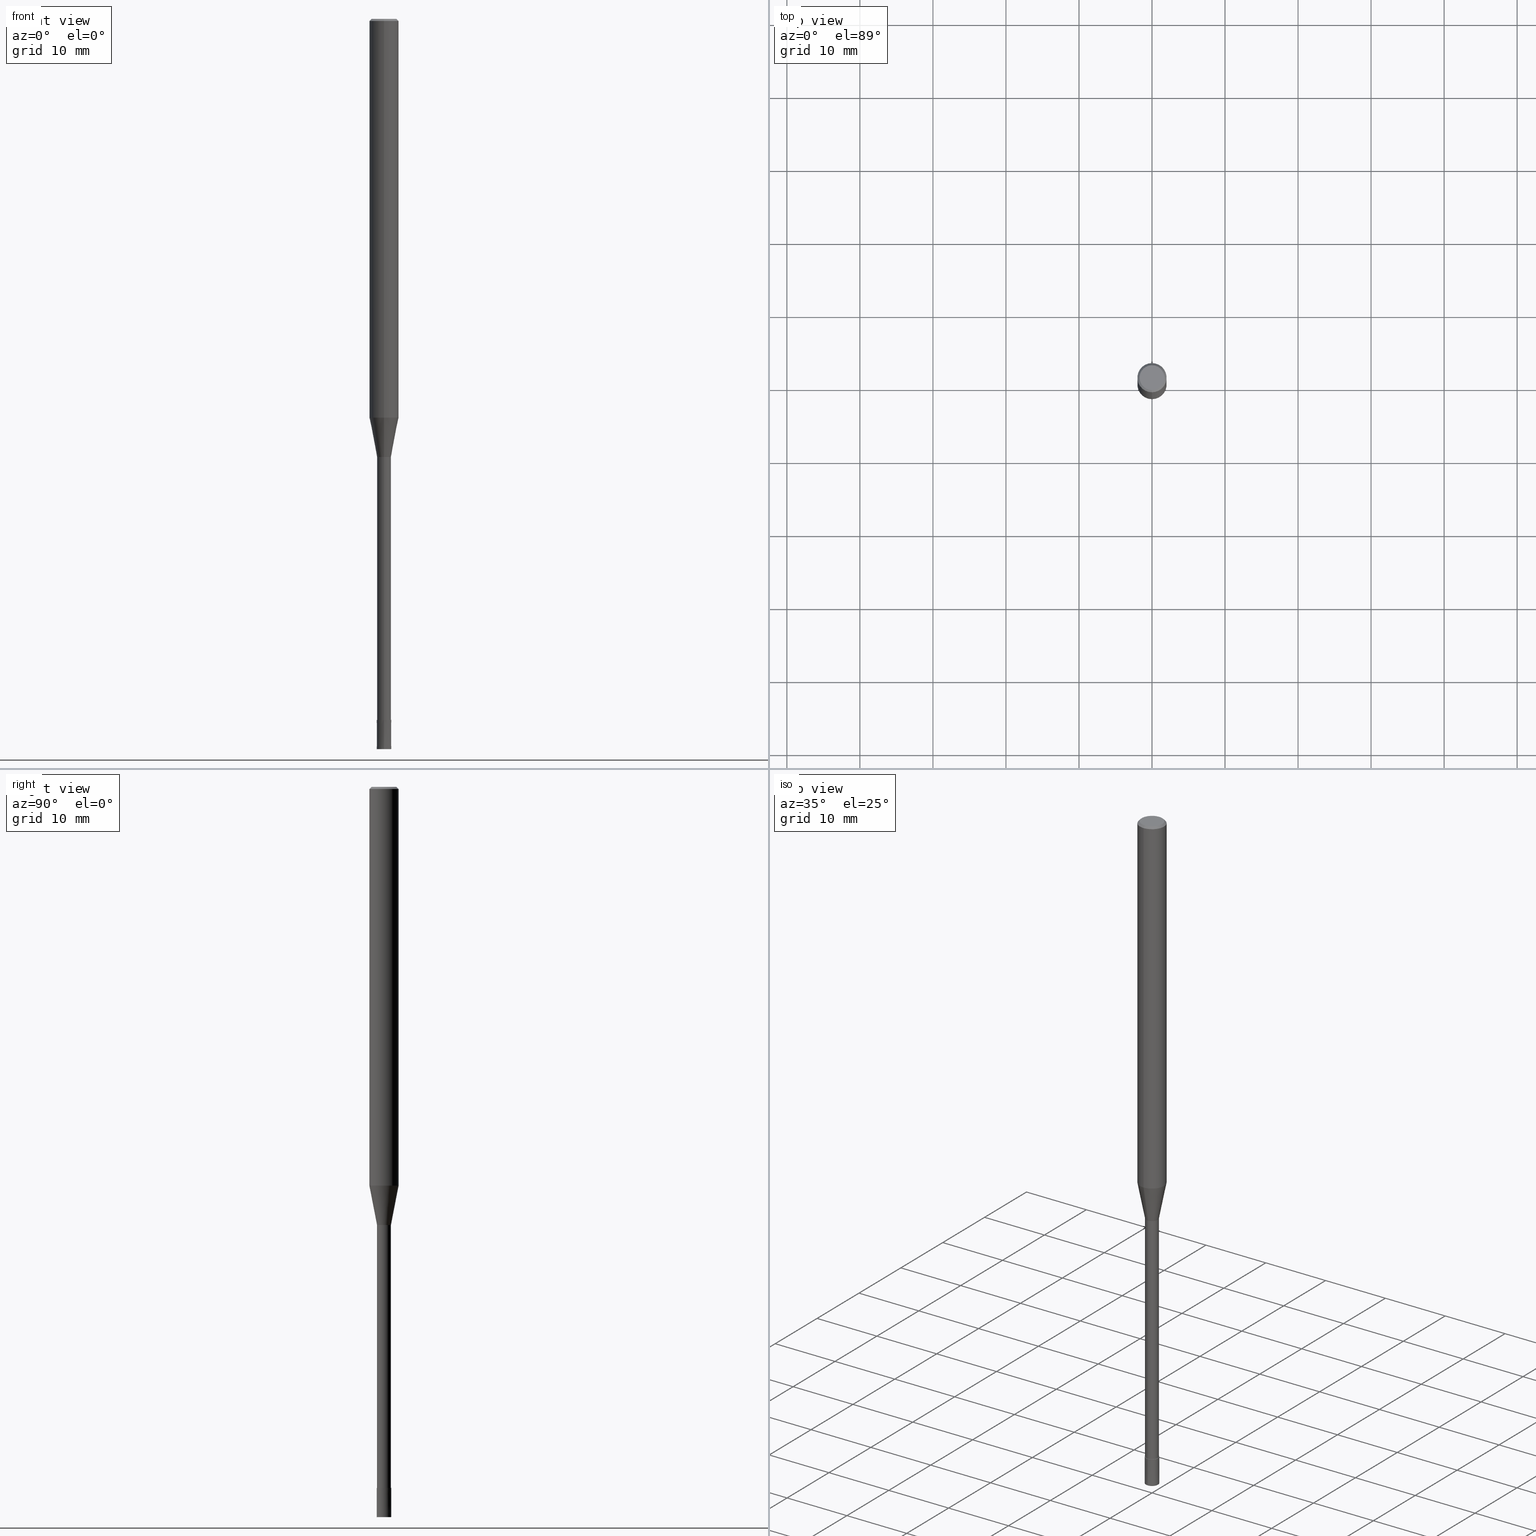
[diagram: canonical four-view strip — front | top / right | iso, engineering-drawing reading convention]
A machine part, canonical four-view strip (front | top / right | iso — engineering-drawing reading convention). The complete STEP part file that produces these views, byte-faithful:
ISO-10303-21;
HEADER;
FILE_DESCRIPTION(('no description'),'unknown implementation level');
FILE_NAME('CPRL2020-40-Huellk.stp','  ',('CIMSOURCE GmbH'),('CADClick - KiM GmbH - www.kimweb.de'),'unknown preprocess','ACIS','unknown authorization');
FILE_SCHEMA(('automotive_design'));
ENDSEC;
DATA;
#1=MECHANICAL_DESIGN_GEOMETRIC_PRESENTATION_REPRESENTATION(' ',(#14,#15,#16,#17,#18,#19,#20,#21,#22,#23,#24,#25,#26,#27,#28,#29,#30,#31,#32,#33,#34,#35,#36,#37,#38,#39,#40,#41,#42,#43,#44,#45,#46,#47,#48,#49,#50,#51,#52,#53,#54,#55,#56,#57,#58,#59,#60,#61,#62,#63,#64,#65,#66,#67,#68,#69,#70,#71,#72),#10);
#2=PRODUCT_DEFINITION_CONTEXT('',#73,'design');
#3=APPLICATION_PROTOCOL_DEFINITION('INTERNATIONAL STANDARD','automotive_design',1994,#73);
#4=PRODUCT_CATEGORY_RELATIONSHIP('NONE','NONE',#74,#75);
#5=SHAPE_DEFINITION_REPRESENTATION(#76,#77);
#6=PRODUCT_DEFINITION_CONTEXT('',#78,'design');
#7=APPLICATION_PROTOCOL_DEFINITION('INTERNATIONAL STANDARD','automotive_design',1994,#78);
#8=PRODUCT_CATEGORY_RELATIONSHIP('NONE','NONE',#79,#80);
#9=SHAPE_DEFINITION_REPRESENTATION(#81,#82);
#10= (GEOMETRIC_REPRESENTATION_CONTEXT(3)GLOBAL_UNCERTAINTY_ASSIGNED_CONTEXT((#85))GLOBAL_UNIT_ASSIGNED_CONTEXT((#87,#88,#89))REPRESENTATION_CONTEXT('NONE','WORKSPACE'));
#14=STYLED_ITEM('',(#91),#92);
#15=STYLED_ITEM('',(#93),#94);
#16=STYLED_ITEM('',(#95),#96);
#17=STYLED_ITEM('',(#97),#98);
#18=STYLED_ITEM('',(#99),#100);
#19=STYLED_ITEM('',(#101),#102);
#20=STYLED_ITEM('',(#103),#104);
#21=STYLED_ITEM('',(#105),#106);
#22=STYLED_ITEM('',(#107),#108);
#23=STYLED_ITEM('',(#109),#110);
#24=STYLED_ITEM('',(#111),#112);
#25=STYLED_ITEM('',(#113),#114);
#26=STYLED_ITEM('',(#115),#116);
#27=STYLED_ITEM('',(#117),#118);
#28=STYLED_ITEM('',(#119),#120);
#29=STYLED_ITEM('',(#121),#122);
#30=STYLED_ITEM('',(#123),#124);
#31=STYLED_ITEM('',(#125),#126);
#32=STYLED_ITEM('',(#127),#128);
#33=STYLED_ITEM('',(#129),#130);
#34=STYLED_ITEM('',(#131),#132);
#35=STYLED_ITEM('',(#133),#134);
#36=STYLED_ITEM('',(#135),#136);
#37=STYLED_ITEM('',(#137),#138);
#38=STYLED_ITEM('',(#139),#140);
#39=STYLED_ITEM('',(#141),#142);
#40=STYLED_ITEM('',(#143),#144);
#41=STYLED_ITEM('',(#145),#146);
#42=STYLED_ITEM('',(#147),#148);
#43=STYLED_ITEM('',(#149),#150);
#44=STYLED_ITEM('',(#151),#152);
#45=STYLED_ITEM('',(#153),#154);
#46=STYLED_ITEM('',(#155),#156);
#47=STYLED_ITEM('',(#157),#158);
#48=STYLED_ITEM('',(#159),#160);
#49=STYLED_ITEM('',(#161),#162);
#50=STYLED_ITEM('',(#163),#164);
#51=STYLED_ITEM('',(#165),#166);
#52=STYLED_ITEM('',(#167),#168);
#53=STYLED_ITEM('',(#169),#170);
#54=STYLED_ITEM('',(#171),#172);
#55=STYLED_ITEM('',(#173),#174);
#56=STYLED_ITEM('',(#175),#176);
#57=STYLED_ITEM('',(#177),#178);
#58=STYLED_ITEM('',(#179),#180);
#59=STYLED_ITEM('',(#181),#182);
#60=STYLED_ITEM('',(#183),#184);
#61=STYLED_ITEM('',(#185),#186);
#62=STYLED_ITEM('',(#187),#188);
#63=STYLED_ITEM('',(#189),#190);
#64=STYLED_ITEM('',(#191),#192);
#65=STYLED_ITEM('',(#193),#194);
#66=STYLED_ITEM('',(#195),#196);
#67=STYLED_ITEM('',(#197),#198);
#68=STYLED_ITEM('',(#199),#200);
#69=STYLED_ITEM('',(#201),#202);
#70=STYLED_ITEM('',(#203),#204);
#71=STYLED_ITEM('',(#205),#206);
#72=STYLED_ITEM('',(#207),#208);
#73=APPLICATION_CONTEXT(' ');
#74=PRODUCT_CATEGORY('part','NONE');
#75=PRODUCT_RELATED_PRODUCT_CATEGORY('detail',' ',(#209));
#76=PRODUCT_DEFINITION_SHAPE('NONE','NONE',#210);
#77=ADVANCED_BREP_SHAPE_REPRESENTATION('1',(#182,#211),#10);
#78=APPLICATION_CONTEXT(' ');
#79=PRODUCT_CATEGORY('part','NONE');
#80=PRODUCT_RELATED_PRODUCT_CATEGORY('detail',' ',(#212));
#81=PRODUCT_DEFINITION_SHAPE('NONE','NONE',#213);
#82=ADVANCED_BREP_SHAPE_REPRESENTATION('2',(#134,#214),#10);
#85=UNCERTAINTY_MEASURE_WITH_UNIT(LENGTH_MEASURE(1.0E-006),#87,'','');
#87= (CONVERSION_BASED_UNIT('MILLIMETRE',#217)LENGTH_UNIT()NAMED_UNIT(#220));
#88= (NAMED_UNIT(#222)PLANE_ANGLE_UNIT()SI_UNIT($,.RADIAN.));
#89= (NAMED_UNIT(#222)SOLID_ANGLE_UNIT()SI_UNIT($,.STERADIAN.));
#91=PRESENTATION_STYLE_ASSIGNMENT((#228));
#92=EDGE_CURVE('',#98,#154,#229,.T.);
#93=PRESENTATION_STYLE_ASSIGNMENT((#230));
#94=EDGE_CURVE('',#196,#110,#231,.T.);
#95=PRESENTATION_STYLE_ASSIGNMENT((#232));
#96=ADVANCED_FACE('',(#233),#234,.T.);
#97=PRESENTATION_STYLE_ASSIGNMENT((#235));
#98=VERTEX_POINT('',#236);
#99=PRESENTATION_STYLE_ASSIGNMENT((#237));
#100=EDGE_CURVE('',#180,#138,#238,.T.);
#101=PRESENTATION_STYLE_ASSIGNMENT((#239));
#102=VERTEX_POINT('',#240);
#103=PRESENTATION_STYLE_ASSIGNMENT((#241));
#104=EDGE_CURVE('',#150,#162,#242,.T.);
#105=PRESENTATION_STYLE_ASSIGNMENT((#243));
#106=EDGE_CURVE('',#176,#160,#244,.T.);
#107=PRESENTATION_STYLE_ASSIGNMENT((#245));
#108=ADVANCED_FACE('',(#246),#247,.T.);
#109=PRESENTATION_STYLE_ASSIGNMENT((#248));
#110=VERTEX_POINT('',#249);
#111=PRESENTATION_STYLE_ASSIGNMENT((#250));
#112=EDGE_CURVE('',#110,#186,#251,.T.);
#113=PRESENTATION_STYLE_ASSIGNMENT((#252));
#114=ADVANCED_FACE('',(#253),#254,.T.);
#115=PRESENTATION_STYLE_ASSIGNMENT((#255));
#116=ADVANCED_FACE('',(#256),#257,.T.);
#117=PRESENTATION_STYLE_ASSIGNMENT((#258));
#118=EDGE_CURVE('',#190,#162,#259,.T.);
#119=PRESENTATION_STYLE_ASSIGNMENT((#260));
#120=EDGE_CURVE('',#138,#176,#261,.T.);
#121=PRESENTATION_STYLE_ASSIGNMENT((#262));
#122=ADVANCED_FACE('',(#263),#264,.T.);
#123=PRESENTATION_STYLE_ASSIGNMENT((#265));
#124=EDGE_CURVE('',#196,#98,#266,.T.);
#125=PRESENTATION_STYLE_ASSIGNMENT((#267));
#126=EDGE_CURVE('',#186,#110,#268,.T.);
#127=PRESENTATION_STYLE_ASSIGNMENT((#269));
#128=EDGE_CURVE('',#136,#138,#270,.T.);
#129=PRESENTATION_STYLE_ASSIGNMENT((#271));
#130=ADVANCED_FACE('',(#272),#273,.T.);
#131=PRESENTATION_STYLE_ASSIGNMENT((#274));
#132=ADVANCED_FACE('',(#275),#276,.T.);
#133=PRESENTATION_STYLE_ASSIGNMENT((#277));
#134=MANIFOLD_SOLID_BREP('2',#278);
#135=PRESENTATION_STYLE_ASSIGNMENT((#279));
#136=VERTEX_POINT('',#280);
#137=PRESENTATION_STYLE_ASSIGNMENT((#281));
#138=VERTEX_POINT('',#282);
#139=PRESENTATION_STYLE_ASSIGNMENT((#283));
#140=EDGE_CURVE('',#186,#98,#284,.T.);
#141=PRESENTATION_STYLE_ASSIGNMENT((#285));
#142=EDGE_CURVE('',#160,#176,#286,.T.);
#143=PRESENTATION_STYLE_ASSIGNMENT((#287));
#144=ADVANCED_FACE('',(#288),#289,.T.);
#145=PRESENTATION_STYLE_ASSIGNMENT((#290));
#146=ADVANCED_FACE('',(#291),#292,.T.);
#147=PRESENTATION_STYLE_ASSIGNMENT((#293));
#148=ADVANCED_FACE('',(#294),#295,.T.);
#149=PRESENTATION_STYLE_ASSIGNMENT((#296));
#150=VERTEX_POINT('',#297);
#151=PRESENTATION_STYLE_ASSIGNMENT((#298));
#152=EDGE_CURVE('',#138,#136,#299,.T.);
#153=PRESENTATION_STYLE_ASSIGNMENT((#300));
#154=VERTEX_POINT('',#301);
#155=PRESENTATION_STYLE_ASSIGNMENT((#302));
#156=ADVANCED_FACE('',(#303),#304,.T.);
#157=PRESENTATION_STYLE_ASSIGNMENT((#305));
#158=ADVANCED_FACE('',(#306),#307,.T.);
#159=PRESENTATION_STYLE_ASSIGNMENT((#308));
#160=VERTEX_POINT('',#309);
#161=PRESENTATION_STYLE_ASSIGNMENT((#310));
#162=VERTEX_POINT('',#311);
#163=PRESENTATION_STYLE_ASSIGNMENT((#312));
#164=VERTEX_POINT('',#313);
#165=PRESENTATION_STYLE_ASSIGNMENT((#314));
#166=EDGE_CURVE('',#180,#102,#315,.T.);
#167=PRESENTATION_STYLE_ASSIGNMENT((#316));
#168=EDGE_CURVE('',#98,#196,#317,.T.);
#169=PRESENTATION_STYLE_ASSIGNMENT((#318));
#170=EDGE_CURVE('',#162,#190,#319,.T.);
#171=PRESENTATION_STYLE_ASSIGNMENT((#320));
#172=EDGE_CURVE('',#190,#184,#321,.T.);
#173=PRESENTATION_STYLE_ASSIGNMENT((#322));
#174=ADVANCED_FACE('',(#323),#324,.T.);
#175=PRESENTATION_STYLE_ASSIGNMENT((#325));
#176=VERTEX_POINT('',#326);
#177=PRESENTATION_STYLE_ASSIGNMENT((#327));
#178=EDGE_CURVE('',#150,#184,#328,.T.);
#179=PRESENTATION_STYLE_ASSIGNMENT((#329));
#180=VERTEX_POINT('',#330);
#181=PRESENTATION_STYLE_ASSIGNMENT((#331));
#182=MANIFOLD_SOLID_BREP('1',#332);
#183=PRESENTATION_STYLE_ASSIGNMENT((#333));
#184=VERTEX_POINT('',#334);
#185=PRESENTATION_STYLE_ASSIGNMENT((#335));
#186=VERTEX_POINT('',#336);
#187=PRESENTATION_STYLE_ASSIGNMENT((#337));
#188=EDGE_CURVE('',#184,#150,#338,.T.);
#189=PRESENTATION_STYLE_ASSIGNMENT((#339));
#190=VERTEX_POINT('',#340);
#191=PRESENTATION_STYLE_ASSIGNMENT((#341));
#192=EDGE_CURVE('',#154,#164,#342,.T.);
#193=PRESENTATION_STYLE_ASSIGNMENT((#343));
#194=ADVANCED_FACE('',(#344,#345),#346,.T.);
#195=PRESENTATION_STYLE_ASSIGNMENT((#347));
#196=VERTEX_POINT('',#348);
#197=PRESENTATION_STYLE_ASSIGNMENT((#349));
#198=EDGE_CURVE('',#160,#136,#350,.T.);
#199=PRESENTATION_STYLE_ASSIGNMENT((#351));
#200=EDGE_CURVE('',#102,#180,#352,.T.);
#201=PRESENTATION_STYLE_ASSIGNMENT((#353));
#202=ADVANCED_FACE('',(#354),#355,.T.);
#203=PRESENTATION_STYLE_ASSIGNMENT((#356));
#204=EDGE_CURVE('',#136,#102,#357,.T.);
#205=PRESENTATION_STYLE_ASSIGNMENT((#358));
#206=EDGE_CURVE('',#164,#196,#359,.T.);
#207=PRESENTATION_STYLE_ASSIGNMENT((#360));
#208=EDGE_CURVE('',#164,#154,#361,.T.);
#209=PRODUCT('1','1','PART-1-DESC',(#362));
#210=PRODUCT_DEFINITION('NONE','NONE',#363,#2);
#211=AXIS2_PLACEMENT_3D('',#364,#365,#366);
#212=PRODUCT('2','2','PART-2-DESC',(#367));
#213=PRODUCT_DEFINITION('NONE','NONE',#368,#6);
#214=AXIS2_PLACEMENT_3D('',#369,#370,#371);
#217=LENGTH_MEASURE_WITH_UNIT(LENGTH_MEASURE(1.0),#372);
#220=DIMENSIONAL_EXPONENTS(1.0,0.0,0.0,0.0,0.0,0.0,0.0);
#222=DIMENSIONAL_EXPONENTS(0.0,0.0,0.0,0.0,0.0,0.0,0.0);
#228=CURVE_STYLE('',#373,POSITIVE_LENGTH_MEASURE(1.0E-006),#374);
#229=LINE('',#375,#376);
#230=CURVE_STYLE('',#377,POSITIVE_LENGTH_MEASURE(1.0E-006),#378);
#231=LINE('',#379,#380);
#232=SURFACE_STYLE_USAGE(.BOTH.,#381);
#233=FACE_OUTER_BOUND('',#382,.T.);
#234=PLANE('',#383);
#235=POINT_STYLE(' ',#384,POSITIVE_LENGTH_MEASURE(1.0E-006),#385);
#236=CARTESIAN_POINT('',(0.0,2.0,-0.299999999999997));
#237=CURVE_STYLE('',#386,POSITIVE_LENGTH_MEASURE(1.0E-006),#387);
#238=LINE('',#388,#389);
#239=POINT_STYLE(' ',#390,POSITIVE_LENGTH_MEASURE(1.0E-006),#391);
#240=CARTESIAN_POINT('',(2.44915147732706E-016,-1.99995,-54.598));
#241=CURVE_STYLE('',#392,POSITIVE_LENGTH_MEASURE(1.0E-006),#393);
#242=LINE('',#394,#395);
#243=CURVE_STYLE('',#396,POSITIVE_LENGTH_MEASURE(1.0E-006),#397);
#244=CIRCLE('',#398,0.94995);
#245=SURFACE_STYLE_USAGE(.BOTH.,#399);
#246=FACE_OUTER_BOUND('',#400,.T.);
#247=CONICAL_SURFACE('',#401,1.85,0.785398163397453);
#248=POINT_STYLE(' ',#402,POSITIVE_LENGTH_MEASURE(1.0E-006),#403);
#249=CARTESIAN_POINT('',(2.08183080149804E-016,-1.7,0.0));
#250=CURVE_STYLE('',#404,POSITIVE_LENGTH_MEASURE(1.0E-006),#405);
#251=CIRCLE('',#406,1.7);
#252=SURFACE_STYLE_USAGE(.BOTH.,#407);
#253=FACE_OUTER_BOUND('',#408,.T.);
#254=PLANE('',#409);
#255=SURFACE_STYLE_USAGE(.BOTH.,#410);
#256=FACE_OUTER_BOUND('',#411,.T.);
#257=CYLINDRICAL_SURFACE('',#412,0.94995);
#258=CURVE_STYLE('',#413,POSITIVE_LENGTH_MEASURE(1.0E-006),#414);
#259=CIRCLE('',#415,0.9999);
#260=CURVE_STYLE('',#416,POSITIVE_LENGTH_MEASURE(1.0E-006),#417);
#261=LINE('',#418,#419);
#262=SURFACE_STYLE_USAGE(.BOTH.,#420);
#263=FACE_OUTER_BOUND('',#421,.T.);
#264=PLANE('',#422);
#265=CURVE_STYLE('',#423,POSITIVE_LENGTH_MEASURE(1.0E-006),#424);
#266=CIRCLE('',#425,2.0);
#267=CURVE_STYLE('',#426,POSITIVE_LENGTH_MEASURE(1.0E-006),#427);
#268=CIRCLE('',#428,1.7);
#269=CURVE_STYLE('',#429,POSITIVE_LENGTH_MEASURE(1.0E-006),#430);
#270=CIRCLE('',#431,0.94995);
#271=SURFACE_STYLE_USAGE(.BOTH.,#432);
#272=FACE_OUTER_BOUND('',#433,.T.);
#273=CONICAL_SURFACE('',#434,0.99995,2.49999999947889E-005);
#274=SURFACE_STYLE_USAGE(.BOTH.,#435);
#275=FACE_OUTER_BOUND('',#436,.T.);
#276=PLANE('',#437);
#277=SURFACE_STYLE_USAGE(.BOTH.,#438);
#278=CLOSED_SHELL('',(#130,#96,#148,#114));
#279=POINT_STYLE(' ',#439,POSITIVE_LENGTH_MEASURE(1.0E-006),#440);
#280=CARTESIAN_POINT('',(1.16331480581357E-016,-0.94995,-60.0));
#281=POINT_STYLE(' ',#441,POSITIVE_LENGTH_MEASURE(1.0E-006),#442);
#282=CARTESIAN_POINT('',(0.0,0.94995,-60.0));
#283=CURVE_STYLE('',#443,POSITIVE_LENGTH_MEASURE(1.0E-006),#444);
#284=LINE('',#445,#446);
#285=CURVE_STYLE('',#447,POSITIVE_LENGTH_MEASURE(1.0E-006),#448);
#286=CIRCLE('',#449,0.94995);
#287=SURFACE_STYLE_USAGE(.BOTH.,#450);
#288=FACE_OUTER_BOUND('',#451,.T.);
#289=CYLINDRICAL_SURFACE('',#452,0.94995);
#290=SURFACE_STYLE_USAGE(.BOTH.,#453);
#291=FACE_OUTER_BOUND('',#454,.T.);
#292=CYLINDRICAL_SURFACE('',#455,2.0);
#293=SURFACE_STYLE_USAGE(.BOTH.,#456);
#294=FACE_OUTER_BOUND('',#457,.T.);
#295=CONICAL_SURFACE('',#458,0.99995,2.49999999947889E-005);
#296=POINT_STYLE(' ',#459,POSITIVE_LENGTH_MEASURE(1.0E-006),#460);
#297=CARTESIAN_POINT('',(1.22460635382238E-016,-1.0,-100.0));
#298=CURVE_STYLE('',#461,POSITIVE_LENGTH_MEASURE(1.0E-006),#462);
#299=CIRCLE('',#463,0.94995);
#300=POINT_STYLE(' ',#464,POSITIVE_LENGTH_MEASURE(1.0E-006),#465);
#301=CARTESIAN_POINT('',(0.0,2.0,-54.598));
#302=SURFACE_STYLE_USAGE(.BOTH.,#466);
#303=FACE_OUTER_BOUND('',#467,.T.);
#304=CONICAL_SURFACE('',#468,1.47495,0.191978649183841);
#305=SURFACE_STYLE_USAGE(.BOTH.,#469);
#306=FACE_OUTER_BOUND('',#470,.T.);
#307=CONICAL_SURFACE('',#471,1.47495,0.191978649183841);
#308=POINT_STYLE(' ',#472,POSITIVE_LENGTH_MEASURE(1.0E-006),#473);
#309=CARTESIAN_POINT('',(1.16331480581357E-016,-0.94995,-96.0));
#310=POINT_STYLE(' ',#474,POSITIVE_LENGTH_MEASURE(1.0E-006),#475);
#311=CARTESIAN_POINT('',(1.224483893187E-016,-0.9999,-96.0));
#312=POINT_STYLE(' ',#476,POSITIVE_LENGTH_MEASURE(1.0E-006),#477);
#313=CARTESIAN_POINT('',(2.44921270764475E-016,-2.0,-54.598));
#314=CURVE_STYLE('',#478,POSITIVE_LENGTH_MEASURE(1.0E-006),#479);
#315=CIRCLE('',#480,1.99995);
#316=CURVE_STYLE('',#481,POSITIVE_LENGTH_MEASURE(1.0E-006),#482);
#317=CIRCLE('',#483,2.0);
#318=CURVE_STYLE('',#484,POSITIVE_LENGTH_MEASURE(1.0E-006),#485);
#319=CIRCLE('',#486,0.9999);
#320=CURVE_STYLE('',#487,POSITIVE_LENGTH_MEASURE(1.0E-006),#488);
#321=LINE('',#489,#490);
#322=SURFACE_STYLE_USAGE(.BOTH.,#491);
#323=FACE_OUTER_BOUND('',#492,.T.);
#324=CONICAL_SURFACE('',#493,1.85,0.785398163397453);
#325=POINT_STYLE(' ',#494,POSITIVE_LENGTH_MEASURE(1.0E-006),#495);
#326=CARTESIAN_POINT('',(0.0,0.94995,-96.0));
#327=CURVE_STYLE('',#496,POSITIVE_LENGTH_MEASURE(1.0E-006),#497);
#328=CIRCLE('',#498,1.0);
#329=POINT_STYLE(' ',#499,POSITIVE_LENGTH_MEASURE(1.0E-006),#500);
#330=CARTESIAN_POINT('',(0.0,1.99995,-54.598));
#331=SURFACE_STYLE_USAGE(.BOTH.,#501);
#332=CLOSED_SHELL('',(#144,#156,#202,#108,#194,#122,#174,#146,#158,#116,#132));
#333=POINT_STYLE(' ',#502,POSITIVE_LENGTH_MEASURE(1.0E-006),#503);
#334=CARTESIAN_POINT('',(0.0,1.0,-100.0));
#335=POINT_STYLE(' ',#504,POSITIVE_LENGTH_MEASURE(1.0E-006),#505);
#336=CARTESIAN_POINT('',(0.0,1.7,0.0));
#337=CURVE_STYLE('',#506,POSITIVE_LENGTH_MEASURE(1.0E-006),#507);
#338=CIRCLE('',#508,1.0);
#339=POINT_STYLE(' ',#509,POSITIVE_LENGTH_MEASURE(1.0E-006),#510);
#340=CARTESIAN_POINT('',(0.0,0.9999,-96.0));
#341=CURVE_STYLE('',#511,POSITIVE_LENGTH_MEASURE(1.0E-006),#512);
#342=CIRCLE('',#513,2.0);
#343=SURFACE_STYLE_USAGE(.BOTH.,#514);
#344=FACE_OUTER_BOUND('',#515,.T.);
#345=FACE_BOUND('',#516,.T.);
#346=PLANE('',#517);
#347=POINT_STYLE(' ',#518,POSITIVE_LENGTH_MEASURE(1.0E-006),#519);
#348=CARTESIAN_POINT('',(2.44921270764475E-016,-2.0,-0.299999999999997));
#349=CURVE_STYLE('',#520,POSITIVE_LENGTH_MEASURE(1.0E-006),#521);
#350=LINE('',#522,#523);
#351=CURVE_STYLE('',#524,POSITIVE_LENGTH_MEASURE(1.0E-006),#525);
#352=CIRCLE('',#526,1.99995);
#353=SURFACE_STYLE_USAGE(.BOTH.,#527);
#354=FACE_OUTER_BOUND('',#528,.T.);
#355=CYLINDRICAL_SURFACE('',#529,2.0);
#356=CURVE_STYLE('',#530,POSITIVE_LENGTH_MEASURE(1.0E-006),#531);
#357=LINE('',#532,#533);
#358=CURVE_STYLE('',#534,POSITIVE_LENGTH_MEASURE(1.0E-006),#535);
#359=LINE('',#536,#537);
#360=CURVE_STYLE('',#538,POSITIVE_LENGTH_MEASURE(1.0E-006),#539);
#361=CIRCLE('',#540,2.0);
#362=PRODUCT_CONTEXT('',#73,'mechanical');
#363=PRODUCT_DEFINITION_FORMATION_WITH_SPECIFIED_SOURCE(' ','NONE',#209,.NOT_KNOWN.);
#364=CARTESIAN_POINT('',(0.0,0.0,0.0));
#365=DIRECTION('',(0.0,0.0,1.0));
#366=DIRECTION('',(1.0,0.0,0.0));
#367=PRODUCT_CONTEXT('',#78,'mechanical');
#368=PRODUCT_DEFINITION_FORMATION_WITH_SPECIFIED_SOURCE(' ','NONE',#212,.NOT_KNOWN.);
#369=CARTESIAN_POINT('',(0.0,0.0,0.0));
#370=DIRECTION('',(0.0,0.0,1.0));
#371=DIRECTION('',(1.0,0.0,0.0));
#372= (NAMED_UNIT(#220)LENGTH_UNIT()SI_UNIT(.MILLI.,.METRE.));
#373=DRAUGHTING_PRE_DEFINED_CURVE_FONT('continuous');
#374=COLOUR_RGB('',0.498039215803146,0.498039215803146,0.498039215803146);
#375=CARTESIAN_POINT('',(-2.44921270764475E-016,2.0,-27.449));
#376=VECTOR('',#542,1.0);
#377=DRAUGHTING_PRE_DEFINED_CURVE_FONT('continuous');
#378=COLOUR_RGB('',0.498039215803146,0.498039215803146,0.498039215803146);
#379=CARTESIAN_POINT('',(2.2655217545714E-016,-1.85,-0.149999999999999));
#380=VECTOR('',#543,1.0);
#381=SURFACE_SIDE_STYLE('',(#544));
#382=EDGE_LOOP('',(#545,#546));
#383=AXIS2_PLACEMENT_3D('',#547,#548,#549);
#384=PRE_DEFINED_MARKER('');
#385=COLOUR_RGB('',0.498039215803146,0.498039215803146,0.498039215803146);
#386=DRAUGHTING_PRE_DEFINED_CURVE_FONT('continuous');
#387=COLOUR_RGB('',0.498039215803146,0.498039215803146,0.498039215803146);
#388=CARTESIAN_POINT('',(-1.80623314157032E-016,1.47495,-57.299));
#389=VECTOR('',#550,1.0);
#390=PRE_DEFINED_MARKER('');
#391=COLOUR_RGB('',0.498039215803146,0.498039215803146,0.498039215803146);
#392=DRAUGHTING_PRE_DEFINED_CURVE_FONT('continuous');
#393=COLOUR_RGB('',0.800000011920929,0.800000011920929,0.800000011920929);
#394=CARTESIAN_POINT('',(1.22454512350469E-016,-0.99995,-98.0));
#395=VECTOR('',#551,1.0);
#396=DRAUGHTING_PRE_DEFINED_CURVE_FONT('continuous');
#397=COLOUR_RGB('',0.498039215803146,0.498039215803146,0.498039215803146);
#398=AXIS2_PLACEMENT_3D('',#552,#553,#554);
#399=SURFACE_SIDE_STYLE('',(#555));
#400=EDGE_LOOP('',(#556,#557,#558,#559));
#401=AXIS2_PLACEMENT_3D('',#560,#561,#562);
#402=PRE_DEFINED_MARKER('');
#403=COLOUR_RGB('',0.498039215803146,0.498039215803146,0.498039215803146);
#404=DRAUGHTING_PRE_DEFINED_CURVE_FONT('continuous');
#405=COLOUR_RGB('',0.498039215803146,0.498039215803146,0.498039215803146);
#406=AXIS2_PLACEMENT_3D('',#563,#564,#565);
#407=SURFACE_SIDE_STYLE('',(#566));
#408=EDGE_LOOP('',(#567,#568));
#409=AXIS2_PLACEMENT_3D('',#569,#570,#571);
#410=SURFACE_SIDE_STYLE('',(#572));
#411=EDGE_LOOP('',(#573,#574,#575,#576));
#412=AXIS2_PLACEMENT_3D('',#577,#578,#579);
#413=DRAUGHTING_PRE_DEFINED_CURVE_FONT('continuous');
#414=COLOUR_RGB('',0.800000011920929,0.800000011920929,0.800000011920929);
#415=AXIS2_PLACEMENT_3D('',#580,#581,#582);
#416=DRAUGHTING_PRE_DEFINED_CURVE_FONT('continuous');
#417=COLOUR_RGB('',0.498039215803146,0.498039215803146,0.498039215803146);
#418=CARTESIAN_POINT('',(-1.16331480581357E-016,0.94995,-78.0));
#419=VECTOR('',#583,1.0);
#420=SURFACE_SIDE_STYLE('',(#584));
#421=EDGE_LOOP('',(#585,#586));
#422=AXIS2_PLACEMENT_3D('',#587,#588,#589);
#423=DRAUGHTING_PRE_DEFINED_CURVE_FONT('continuous');
#424=COLOUR_RGB('',0.498039215803146,0.498039215803146,0.498039215803146);
#425=AXIS2_PLACEMENT_3D('',#590,#591,#592);
#426=DRAUGHTING_PRE_DEFINED_CURVE_FONT('continuous');
#427=COLOUR_RGB('',0.498039215803146,0.498039215803146,0.498039215803146);
#428=AXIS2_PLACEMENT_3D('',#593,#594,#595);
#429=DRAUGHTING_PRE_DEFINED_CURVE_FONT('continuous');
#430=COLOUR_RGB('',0.498039215803146,0.498039215803146,0.498039215803146);
#431=AXIS2_PLACEMENT_3D('',#596,#597,#598);
#432=SURFACE_SIDE_STYLE('',(#599));
#433=EDGE_LOOP('',(#600,#601,#602,#603));
#434=AXIS2_PLACEMENT_3D('',#604,#605,#606);
#435=SURFACE_SIDE_STYLE('',(#607));
#436=EDGE_LOOP('',(#608,#609));
#437=AXIS2_PLACEMENT_3D('',#610,#611,#612);
#438=SURFACE_SIDE_STYLE('',(#613));
#439=PRE_DEFINED_MARKER('');
#440=COLOUR_RGB('',0.498039215803146,0.498039215803146,0.498039215803146);
#441=PRE_DEFINED_MARKER('');
#442=COLOUR_RGB('',0.498039215803146,0.498039215803146,0.498039215803146);
#443=DRAUGHTING_PRE_DEFINED_CURVE_FONT('continuous');
#444=COLOUR_RGB('',0.498039215803146,0.498039215803146,0.498039215803146);
#445=CARTESIAN_POINT('',(-2.2655217545714E-016,1.85,-0.149999999999999));
#446=VECTOR('',#614,1.0);
#447=DRAUGHTING_PRE_DEFINED_CURVE_FONT('continuous');
#448=COLOUR_RGB('',0.498039215803146,0.498039215803146,0.498039215803146);
#449=AXIS2_PLACEMENT_3D('',#615,#616,#617);
#450=SURFACE_SIDE_STYLE('',(#618));
#451=EDGE_LOOP('',(#619,#620,#621,#622));
#452=AXIS2_PLACEMENT_3D('',#623,#624,#625);
#453=SURFACE_SIDE_STYLE('',(#626));
#454=EDGE_LOOP('',(#627,#628,#629,#630));
#455=AXIS2_PLACEMENT_3D('',#631,#632,#633);
#456=SURFACE_SIDE_STYLE('',(#634));
#457=EDGE_LOOP('',(#635,#636,#637,#638));
#458=AXIS2_PLACEMENT_3D('',#639,#640,#641);
#459=PRE_DEFINED_MARKER('');
#460=COLOUR_RGB('',0.800000011920929,0.800000011920929,0.800000011920929);
#461=DRAUGHTING_PRE_DEFINED_CURVE_FONT('continuous');
#462=COLOUR_RGB('',0.498039215803146,0.498039215803146,0.498039215803146);
#463=AXIS2_PLACEMENT_3D('',#642,#643,#644);
#464=PRE_DEFINED_MARKER('');
#465=COLOUR_RGB('',0.498039215803146,0.498039215803146,0.498039215803146);
#466=SURFACE_SIDE_STYLE('',(#645));
#467=EDGE_LOOP('',(#646,#647,#648,#649));
#468=AXIS2_PLACEMENT_3D('',#650,#651,#652);
#469=SURFACE_SIDE_STYLE('',(#653));
#470=EDGE_LOOP('',(#654,#655,#656,#657));
#471=AXIS2_PLACEMENT_3D('',#658,#659,#660);
#472=PRE_DEFINED_MARKER('');
#473=COLOUR_RGB('',0.498039215803146,0.498039215803146,0.498039215803146);
#474=PRE_DEFINED_MARKER('');
#475=COLOUR_RGB('',0.800000011920929,0.800000011920929,0.800000011920929);
#476=PRE_DEFINED_MARKER('');
#477=COLOUR_RGB('',0.498039215803146,0.498039215803146,0.498039215803146);
#478=DRAUGHTING_PRE_DEFINED_CURVE_FONT('continuous');
#479=COLOUR_RGB('',0.498039215803146,0.498039215803146,0.498039215803146);
#480=AXIS2_PLACEMENT_3D('',#661,#662,#663);
#481=DRAUGHTING_PRE_DEFINED_CURVE_FONT('continuous');
#482=COLOUR_RGB('',0.498039215803146,0.498039215803146,0.498039215803146);
#483=AXIS2_PLACEMENT_3D('',#664,#665,#666);
#484=DRAUGHTING_PRE_DEFINED_CURVE_FONT('continuous');
#485=COLOUR_RGB('',0.800000011920929,0.800000011920929,0.800000011920929);
#486=AXIS2_PLACEMENT_3D('',#667,#668,#669);
#487=DRAUGHTING_PRE_DEFINED_CURVE_FONT('continuous');
#488=COLOUR_RGB('',0.800000011920929,0.800000011920929,0.800000011920929);
#489=CARTESIAN_POINT('',(-1.22454512350469E-016,0.99995,-98.0));
#490=VECTOR('',#670,1.0);
#491=SURFACE_SIDE_STYLE('',(#671));
#492=EDGE_LOOP('',(#672,#673,#674,#675));
#493=AXIS2_PLACEMENT_3D('',#676,#677,#678);
#494=PRE_DEFINED_MARKER('');
#495=COLOUR_RGB('',0.498039215803146,0.498039215803146,0.498039215803146);
#496=DRAUGHTING_PRE_DEFINED_CURVE_FONT('continuous');
#497=COLOUR_RGB('',0.800000011920929,0.800000011920929,0.800000011920929);
#498=AXIS2_PLACEMENT_3D('',#679,#680,#681);
#499=PRE_DEFINED_MARKER('');
#500=COLOUR_RGB('',0.498039215803146,0.498039215803146,0.498039215803146);
#501=SURFACE_SIDE_STYLE('',(#682));
#502=PRE_DEFINED_MARKER('');
#503=COLOUR_RGB('',0.800000011920929,0.800000011920929,0.800000011920929);
#504=PRE_DEFINED_MARKER('');
#505=COLOUR_RGB('',0.498039215803146,0.498039215803146,0.498039215803146);
#506=DRAUGHTING_PRE_DEFINED_CURVE_FONT('continuous');
#507=COLOUR_RGB('',0.800000011920929,0.800000011920929,0.800000011920929);
#508=AXIS2_PLACEMENT_3D('',#683,#684,#685);
#509=PRE_DEFINED_MARKER('');
#510=COLOUR_RGB('',0.800000011920929,0.800000011920929,0.800000011920929);
#511=DRAUGHTING_PRE_DEFINED_CURVE_FONT('continuous');
#512=COLOUR_RGB('',0.498039215803146,0.498039215803146,0.498039215803146);
#513=AXIS2_PLACEMENT_3D('',#686,#687,#688);
#514=SURFACE_SIDE_STYLE('',(#689));
#515=EDGE_LOOP('',(#690,#691));
#516=EDGE_LOOP('',(#692,#693));
#517=AXIS2_PLACEMENT_3D('',#694,#695,#696);
#518=PRE_DEFINED_MARKER('');
#519=COLOUR_RGB('',0.498039215803146,0.498039215803146,0.498039215803146);
#520=DRAUGHTING_PRE_DEFINED_CURVE_FONT('continuous');
#521=COLOUR_RGB('',0.498039215803146,0.498039215803146,0.498039215803146);
#522=CARTESIAN_POINT('',(1.16331480581357E-016,-0.94995,-78.0));
#523=VECTOR('',#697,1.0);
#524=DRAUGHTING_PRE_DEFINED_CURVE_FONT('continuous');
#525=COLOUR_RGB('',0.498039215803146,0.498039215803146,0.498039215803146);
#526=AXIS2_PLACEMENT_3D('',#698,#699,#700);
#527=SURFACE_SIDE_STYLE('',(#701));
#528=EDGE_LOOP('',(#702,#703,#704,#705));
#529=AXIS2_PLACEMENT_3D('',#706,#707,#708);
#530=DRAUGHTING_PRE_DEFINED_CURVE_FONT('continuous');
#531=COLOUR_RGB('',0.498039215803146,0.498039215803146,0.498039215803146);
#532=CARTESIAN_POINT('',(1.80623314157031E-016,-1.47495,-57.299));
#533=VECTOR('',#709,1.0);
#534=DRAUGHTING_PRE_DEFINED_CURVE_FONT('continuous');
#535=COLOUR_RGB('',0.498039215803146,0.498039215803146,0.498039215803146);
#536=CARTESIAN_POINT('',(2.44921270764475E-016,-2.0,-27.449));
#537=VECTOR('',#710,1.0);
#538=DRAUGHTING_PRE_DEFINED_CURVE_FONT('continuous');
#539=COLOUR_RGB('',0.498039215803146,0.498039215803146,0.498039215803146);
#540=AXIS2_PLACEMENT_3D('',#711,#712,#713);
#542=DIRECTION('',(0.0,0.0,-1.0));
#543=DIRECTION('',(-8.6592745707194E-017,0.707106781186551,0.707106781186544));
#544=SURFACE_STYLE_FILL_AREA(#714);
#545=ORIENTED_EDGE('',*,*,#118,.F.);
#546=ORIENTED_EDGE('',*,*,#170,.F.);
#547=CARTESIAN_POINT('',(0.0,0.49995,-96.0));
#548=DIRECTION('',(-0.0,0.0,1.0));
#549=DIRECTION('',(0.0,-1.0,0.0));
#550=DIRECTION('',(2.33656809909205E-017,-0.190801565890859,-0.981628627564211));
#551=DIRECTION('',(-3.06151588359888E-021,2.49999999921847E-005,0.9999999996875));
#552=CARTESIAN_POINT('',(0.0,0.0,-96.0));
#553=DIRECTION('',(0.0,0.0,-1.0));
#554=DIRECTION('',(0.0,1.0,0.0));
#555=SURFACE_STYLE_FILL_AREA(#715);
#556=ORIENTED_EDGE('',*,*,#140,.F.);
#557=ORIENTED_EDGE('',*,*,#126,.T.);
#558=ORIENTED_EDGE('',*,*,#94,.F.);
#559=ORIENTED_EDGE('',*,*,#168,.F.);
#560=CARTESIAN_POINT('',(0.0,0.0,-0.149999999999999));
#561=DIRECTION('',(0.0,-0.0,-1.0));
#562=DIRECTION('',(0.0,1.0,0.0));
#563=CARTESIAN_POINT('',(0.0,0.0,0.0));
#564=DIRECTION('',(0.0,0.0,-1.0));
#565=DIRECTION('',(0.0,1.0,0.0));
#566=SURFACE_STYLE_FILL_AREA(#716);
#567=ORIENTED_EDGE('',*,*,#188,.T.);
#568=ORIENTED_EDGE('',*,*,#178,.T.);
#569=CARTESIAN_POINT('',(0.0,0.4975,-100.0));
#570=DIRECTION('',(0.0,0.0,-1.0));
#571=DIRECTION('',(0.0,1.0,0.0));
#572=SURFACE_STYLE_FILL_AREA(#717);
#573=ORIENTED_EDGE('',*,*,#120,.T.);
#574=ORIENTED_EDGE('',*,*,#142,.F.);
#575=ORIENTED_EDGE('',*,*,#198,.T.);
#576=ORIENTED_EDGE('',*,*,#128,.T.);
#577=CARTESIAN_POINT('',(0.0,0.0,-78.0));
#578=DIRECTION('',(-0.0,-0.0,1.0));
#579=DIRECTION('',(0.0,1.0,0.0));
#580=CARTESIAN_POINT('',(0.0,0.0,-96.0));
#581=DIRECTION('',(0.0,0.0,-1.0));
#582=DIRECTION('',(0.0,1.0,0.0));
#583=DIRECTION('',(0.0,0.0,-1.0));
#584=SURFACE_STYLE_FILL_AREA(#718);
#585=ORIENTED_EDGE('',*,*,#126,.F.);
#586=ORIENTED_EDGE('',*,*,#112,.F.);
#587=CARTESIAN_POINT('',(0.0,0.85,0.0));
#588=DIRECTION('',(-0.0,0.0,1.0));
#589=DIRECTION('',(0.0,-1.0,0.0));
#590=CARTESIAN_POINT('',(0.0,0.0,-0.299999999999997));
#591=DIRECTION('',(0.0,0.0,-1.0));
#592=DIRECTION('',(0.0,1.0,0.0));
#593=CARTESIAN_POINT('',(0.0,0.0,0.0));
#594=DIRECTION('',(0.0,0.0,-1.0));
#595=DIRECTION('',(0.0,1.0,0.0));
#596=CARTESIAN_POINT('',(0.0,0.0,-60.0));
#597=DIRECTION('',(0.0,0.0,-1.0));
#598=DIRECTION('',(0.0,1.0,0.0));
#599=SURFACE_STYLE_FILL_AREA(#719);
#600=ORIENTED_EDGE('',*,*,#172,.F.);
#601=ORIENTED_EDGE('',*,*,#118,.T.);
#602=ORIENTED_EDGE('',*,*,#104,.F.);
#603=ORIENTED_EDGE('',*,*,#188,.F.);
#604=CARTESIAN_POINT('',(0.0,0.0,-98.0));
#605=DIRECTION('',(0.0,-0.0,-1.0));
#606=DIRECTION('',(0.0,1.0,0.0));
#607=SURFACE_STYLE_FILL_AREA(#720);
#608=ORIENTED_EDGE('',*,*,#106,.T.);
#609=ORIENTED_EDGE('',*,*,#142,.T.);
#610=CARTESIAN_POINT('',(0.0,0.474975,-96.0));
#611=DIRECTION('',(0.0,0.0,-1.0));
#612=DIRECTION('',(0.0,1.0,0.0));
#613=SURFACE_STYLE_FILL_AREA(#721);
#614=DIRECTION('',(-8.6592745707194E-017,0.707106781186551,-0.707106781186544));
#615=CARTESIAN_POINT('',(0.0,0.0,-96.0));
#616=DIRECTION('',(0.0,0.0,-1.0));
#617=DIRECTION('',(0.0,1.0,0.0));
#618=SURFACE_STYLE_FILL_AREA(#722);
#619=ORIENTED_EDGE('',*,*,#120,.F.);
#620=ORIENTED_EDGE('',*,*,#152,.T.);
#621=ORIENTED_EDGE('',*,*,#198,.F.);
#622=ORIENTED_EDGE('',*,*,#106,.F.);
#623=CARTESIAN_POINT('',(0.0,0.0,-78.0));
#624=DIRECTION('',(-0.0,-0.0,1.0));
#625=DIRECTION('',(0.0,1.0,0.0));
#626=SURFACE_STYLE_FILL_AREA(#723);
#627=ORIENTED_EDGE('',*,*,#92,.T.);
#628=ORIENTED_EDGE('',*,*,#208,.F.);
#629=ORIENTED_EDGE('',*,*,#206,.T.);
#630=ORIENTED_EDGE('',*,*,#124,.T.);
#631=CARTESIAN_POINT('',(0.0,0.0,-27.449));
#632=DIRECTION('',(-0.0,-0.0,1.0));
#633=DIRECTION('',(0.0,1.0,0.0));
#634=SURFACE_STYLE_FILL_AREA(#724);
#635=ORIENTED_EDGE('',*,*,#172,.T.);
#636=ORIENTED_EDGE('',*,*,#178,.F.);
#637=ORIENTED_EDGE('',*,*,#104,.T.);
#638=ORIENTED_EDGE('',*,*,#170,.T.);
#639=CARTESIAN_POINT('',(0.0,0.0,-98.0));
#640=DIRECTION('',(0.0,-0.0,-1.0));
#641=DIRECTION('',(0.0,1.0,0.0));
#642=CARTESIAN_POINT('',(0.0,0.0,-60.0));
#643=DIRECTION('',(0.0,0.0,-1.0));
#644=DIRECTION('',(0.0,1.0,0.0));
#645=SURFACE_STYLE_FILL_AREA(#725);
#646=ORIENTED_EDGE('',*,*,#100,.F.);
#647=ORIENTED_EDGE('',*,*,#166,.T.);
#648=ORIENTED_EDGE('',*,*,#204,.F.);
#649=ORIENTED_EDGE('',*,*,#152,.F.);
#650=CARTESIAN_POINT('',(0.0,0.0,-57.299));
#651=DIRECTION('',(-0.0,-0.0,1.0));
#652=DIRECTION('',(0.0,1.0,0.0));
#653=SURFACE_STYLE_FILL_AREA(#726);
#654=ORIENTED_EDGE('',*,*,#100,.T.);
#655=ORIENTED_EDGE('',*,*,#128,.F.);
#656=ORIENTED_EDGE('',*,*,#204,.T.);
#657=ORIENTED_EDGE('',*,*,#200,.T.);
#658=CARTESIAN_POINT('',(0.0,0.0,-57.299));
#659=DIRECTION('',(-0.0,-0.0,1.0));
#660=DIRECTION('',(0.0,1.0,0.0));
#661=CARTESIAN_POINT('',(0.0,0.0,-54.598));
#662=DIRECTION('',(0.0,0.0,-1.0));
#663=DIRECTION('',(0.0,1.0,0.0));
#664=CARTESIAN_POINT('',(0.0,0.0,-0.299999999999997));
#665=DIRECTION('',(0.0,0.0,-1.0));
#666=DIRECTION('',(0.0,1.0,0.0));
#667=CARTESIAN_POINT('',(0.0,0.0,-96.0));
#668=DIRECTION('',(0.0,0.0,-1.0));
#669=DIRECTION('',(0.0,1.0,0.0));
#670=DIRECTION('',(-3.06151588359888E-021,2.49999999921847E-005,-0.9999999996875));
#671=SURFACE_STYLE_FILL_AREA(#727);
#672=ORIENTED_EDGE('',*,*,#140,.T.);
#673=ORIENTED_EDGE('',*,*,#124,.F.);
#674=ORIENTED_EDGE('',*,*,#94,.T.);
#675=ORIENTED_EDGE('',*,*,#112,.T.);
#676=CARTESIAN_POINT('',(0.0,0.0,-0.149999999999999));
#677=DIRECTION('',(0.0,-0.0,-1.0));
#678=DIRECTION('',(0.0,1.0,0.0));
#679=CARTESIAN_POINT('',(0.0,0.0,-100.0));
#680=DIRECTION('',(0.0,0.0,-1.0));
#681=DIRECTION('',(0.0,1.0,0.0));
#682=SURFACE_STYLE_FILL_AREA(#728);
#683=CARTESIAN_POINT('',(0.0,0.0,-100.0));
#684=DIRECTION('',(0.0,0.0,-1.0));
#685=DIRECTION('',(0.0,1.0,0.0));
#686=CARTESIAN_POINT('',(0.0,0.0,-54.598));
#687=DIRECTION('',(0.0,0.0,-1.0));
#688=DIRECTION('',(0.0,1.0,0.0));
#689=SURFACE_STYLE_FILL_AREA(#729);
#690=ORIENTED_EDGE('',*,*,#192,.T.);
#691=ORIENTED_EDGE('',*,*,#208,.T.);
#692=ORIENTED_EDGE('',*,*,#166,.F.);
#693=ORIENTED_EDGE('',*,*,#200,.F.);
#694=CARTESIAN_POINT('',(0.0,1.0,-54.598));
#695=DIRECTION('',(0.0,0.0,-1.0));
#696=DIRECTION('',(0.0,1.0,0.0));
#697=DIRECTION('',(-0.0,-0.0,1.0));
#698=CARTESIAN_POINT('',(0.0,0.0,-54.598));
#699=DIRECTION('',(0.0,0.0,-1.0));
#700=DIRECTION('',(0.0,1.0,0.0));
#701=SURFACE_STYLE_FILL_AREA(#730);
#702=ORIENTED_EDGE('',*,*,#92,.F.);
#703=ORIENTED_EDGE('',*,*,#168,.T.);
#704=ORIENTED_EDGE('',*,*,#206,.F.);
#705=ORIENTED_EDGE('',*,*,#192,.F.);
#706=CARTESIAN_POINT('',(0.0,0.0,-27.449));
#707=DIRECTION('',(-0.0,-0.0,1.0));
#708=DIRECTION('',(0.0,1.0,0.0));
#709=DIRECTION('',(2.33656809909205E-017,-0.190801565890859,0.981628627564211));
#710=DIRECTION('',(-0.0,-0.0,1.0));
#711=CARTESIAN_POINT('',(0.0,0.0,-54.598));
#712=DIRECTION('',(0.0,0.0,-1.0));
#713=DIRECTION('',(0.0,1.0,0.0));
#714=FILL_AREA_STYLE('',(#731));
#715=FILL_AREA_STYLE('',(#732));
#716=FILL_AREA_STYLE('',(#733));
#717=FILL_AREA_STYLE('',(#734));
#718=FILL_AREA_STYLE('',(#735));
#719=FILL_AREA_STYLE('',(#736));
#720=FILL_AREA_STYLE('',(#737));
#721=FILL_AREA_STYLE('',(#738));
#722=FILL_AREA_STYLE('',(#739));
#723=FILL_AREA_STYLE('',(#740));
#724=FILL_AREA_STYLE('',(#741));
#725=FILL_AREA_STYLE('',(#742));
#726=FILL_AREA_STYLE('',(#743));
#727=FILL_AREA_STYLE('',(#744));
#728=FILL_AREA_STYLE('',(#745));
#729=FILL_AREA_STYLE('',(#746));
#730=FILL_AREA_STYLE('',(#747));
#731=FILL_AREA_STYLE_COLOUR('',#748);
#732=FILL_AREA_STYLE_COLOUR('',#749);
#733=FILL_AREA_STYLE_COLOUR('',#750);
#734=FILL_AREA_STYLE_COLOUR('',#751);
#735=FILL_AREA_STYLE_COLOUR('',#752);
#736=FILL_AREA_STYLE_COLOUR('',#753);
#737=FILL_AREA_STYLE_COLOUR('',#754);
#738=FILL_AREA_STYLE_COLOUR('',#755);
#739=FILL_AREA_STYLE_COLOUR('',#756);
#740=FILL_AREA_STYLE_COLOUR('',#757);
#741=FILL_AREA_STYLE_COLOUR('',#758);
#742=FILL_AREA_STYLE_COLOUR('',#759);
#743=FILL_AREA_STYLE_COLOUR('',#760);
#744=FILL_AREA_STYLE_COLOUR('',#761);
#745=FILL_AREA_STYLE_COLOUR('',#762);
#746=FILL_AREA_STYLE_COLOUR('',#763);
#747=FILL_AREA_STYLE_COLOUR('',#764);
#748=COLOUR_RGB('',0.800000011920929,0.800000011920929,0.800000011920929);
#749=COLOUR_RGB('',0.498039215803146,0.498039215803146,0.498039215803146);
#750=COLOUR_RGB('',0.800000011920929,0.800000011920929,0.800000011920929);
#751=COLOUR_RGB('',0.498039215803146,0.498039215803146,0.498039215803146);
#752=COLOUR_RGB('',0.498039215803146,0.498039215803146,0.498039215803146);
#753=COLOUR_RGB('',0.800000011920929,0.800000011920929,0.800000011920929);
#754=COLOUR_RGB('',0.498039215803146,0.498039215803146,0.498039215803146);
#755=COLOUR_RGB('',0.800000011920929,0.800000011920929,0.800000011920929);
#756=COLOUR_RGB('',0.498039215803146,0.498039215803146,0.498039215803146);
#757=COLOUR_RGB('',0.498039215803146,0.498039215803146,0.498039215803146);
#758=COLOUR_RGB('',0.800000011920929,0.800000011920929,0.800000011920929);
#759=COLOUR_RGB('',0.498039215803146,0.498039215803146,0.498039215803146);
#760=COLOUR_RGB('',0.498039215803146,0.498039215803146,0.498039215803146);
#761=COLOUR_RGB('',0.498039215803146,0.498039215803146,0.498039215803146);
#762=COLOUR_RGB('',0.498039215803146,0.498039215803146,0.498039215803146);
#763=COLOUR_RGB('',0.498039215803146,0.498039215803146,0.498039215803146);
#764=COLOUR_RGB('',0.498039215803146,0.498039215803146,0.498039215803146);
#765=AXIS2_PLACEMENT_3D('PCS',#766,#767,#768);
#766=CARTESIAN_POINT('',(0.0,0.0,0.0));
#767=DIRECTION('',(0.0,0.0,1.0));
#768=DIRECTION('',(1.0,0.0,0.0));
#769=AXIS2_PLACEMENT_3D('CIP',#770,#771,#772);
#770=CARTESIAN_POINT('',(0.0,0.0,-100.0));
#771=DIRECTION('',(0.0,0.0,1.0));
#772=DIRECTION('',(1.0,0.0,0.0));
#773=AXIS2_PLACEMENT_3D('CRP',#774,#775,#776);
#774=CARTESIAN_POINT('',(-1.0,0.0,-100.0));
#775=DIRECTION('',(0.0,0.0,1.0));
#776=DIRECTION('',(1.0,0.0,0.0));
#777=AXIS2_PLACEMENT_3D('MCS',#778,#779,#780);
#778=CARTESIAN_POINT('',(0.0,0.0,-54.598));
#779=DIRECTION('',(0.0,0.0,1.0));
#780=DIRECTION('',(1.0,0.0,0.0));
#781=CONSTRUCTIVE_GEOMETRY_REPRESENTATION_RELATIONSHIP('coordinate systems',$,#77,#782);
#782=CONSTRUCTIVE_GEOMETRY_REPRESENTATION('coordinate systems',(#765,#769,#773,#777),#10);
ENDSEC;
END-ISO-10303-21;
